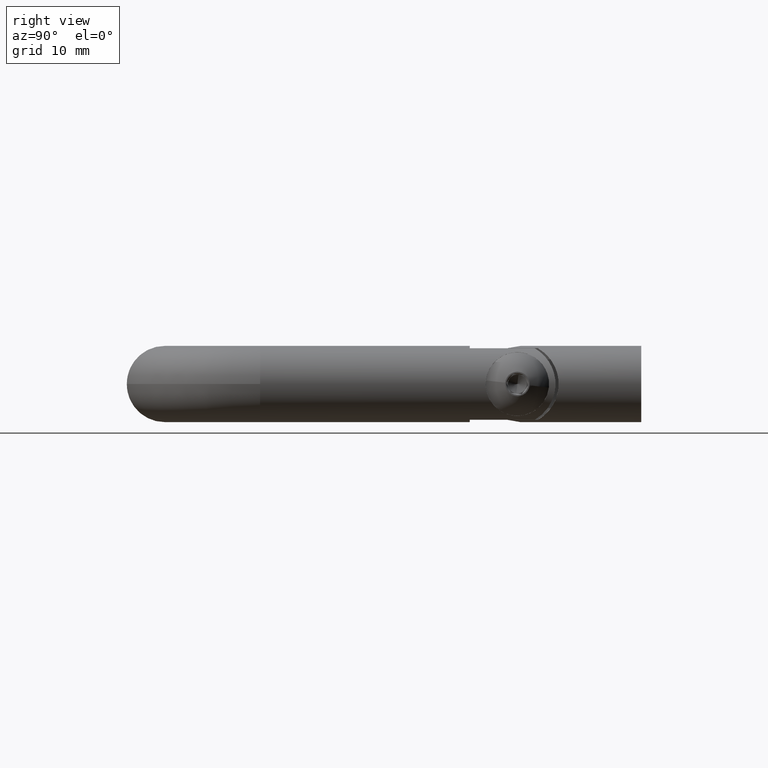
[diagram: clean part render]
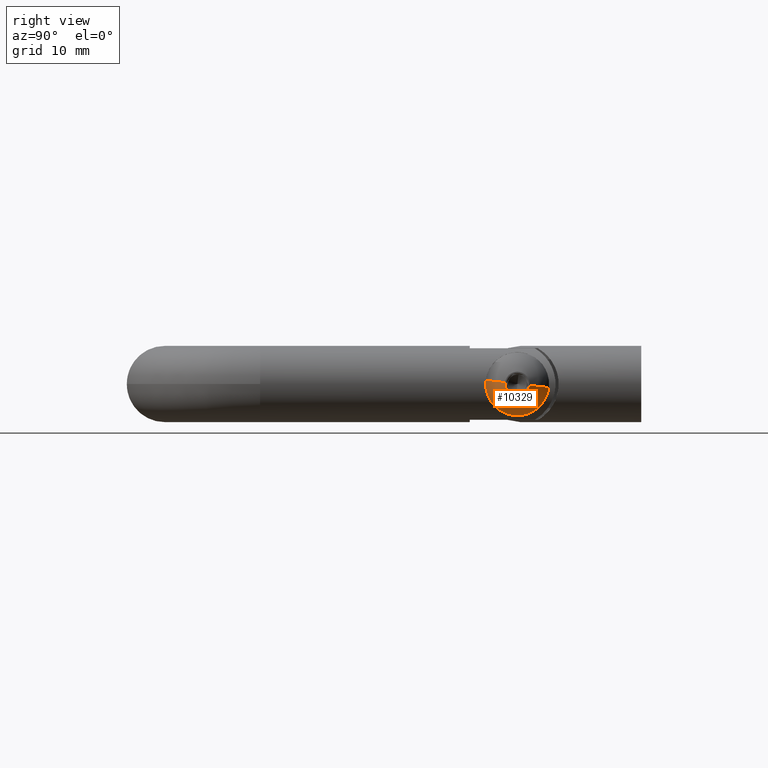
[diagram: same view with one face highlighted and labeled with its STEP entity id]
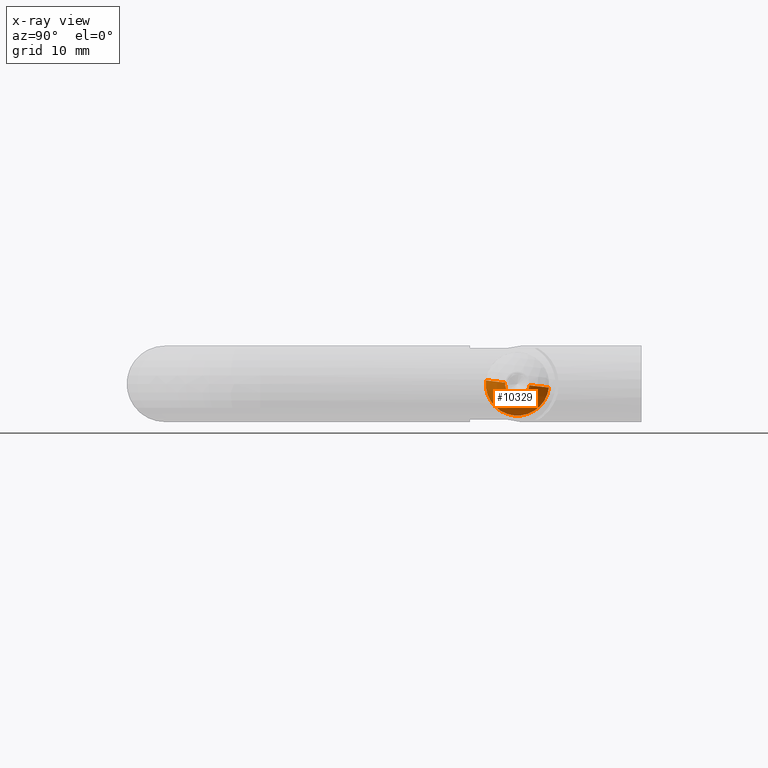
[diagram: x-ray of the same camera — body ghosted, the highlighted face saturated]
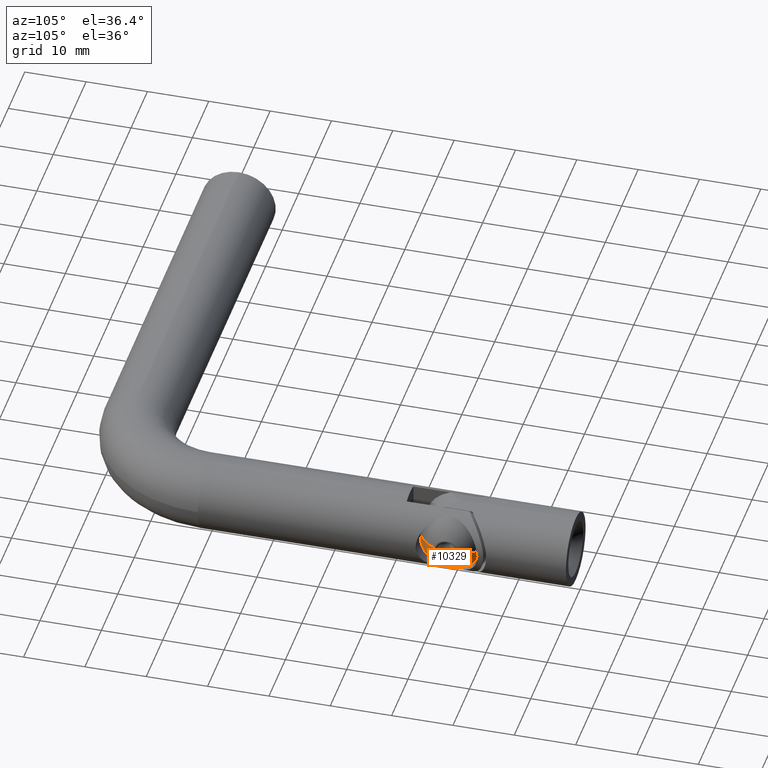
[diagram: same view with one face highlighted and labeled with its STEP entity id]
A machine part, right view. The second image highlights one B-rep face of the part: STEP entity #10329.
The next image is the same camera in x-ray: the body ghosted, the highlighted face saturated — about 0% of this face is hidden behind the body in this view.
A second angle (auxiliary view) of the same face is appended — the face is thin or edge-on in the first view.
In plain terms, the highlighted spherical surface has radius 5.7263 mm.
Its self-contained STEP definition (entity closure, byte-faithful):
#66 = VERTEX_POINT ( 'NONE', #1034 ) ;
#183 = DIRECTION ( 'NONE',  ( 5.551115123125753736E-17, -5.669937756275992574E-31, -1.000000000000000000 ) ) ;
#251 = CARTESIAN_POINT ( 'NONE',  ( 0.000000000000000000, 5.390155783928374689, 0.000000000000000000 ) ) ;
#521 = CARTESIAN_POINT ( 'NONE',  ( 0.000000000000000000, 0.000000000000000000, 0.000000000000000000 ) ) ;
#555 = VERTEX_POINT ( 'NONE', #4785 ) ;
#635 = EDGE_CURVE ( 'NONE', #66, #12168, #15526, .T. ) ;
#1034 = CARTESIAN_POINT ( 'NONE',  ( -1.933000807568874491, 0.000000000000000000, 2.320944342160657094E-16 ) ) ;
#1130 = ORIENTED_EDGE ( 'NONE', *, *, #4786, .F. ) ;
#1676 = DIRECTION ( 'NONE',  ( 1.294224922628222493E-31, -1.000000000000000000, -6.409494854920720919E-31 ) ) ;
#2050 = AXIS2_PLACEMENT_3D ( 'NONE', #12110, #1676, #15347 ) ;
#2093 = FACE_OUTER_BOUND ( 'NONE', #2482, .T. ) ;
#2175 = EDGE_CURVE ( 'NONE', #9687, #3368, #10539, .T. ) ;
#2283 = CARTESIAN_POINT ( 'NONE',  ( 0.000000000000000000, 5.390155783928374689, 0.000000000000000000 ) ) ;
#2351 = AXIS2_PLACEMENT_3D ( 'NONE', #521, #6147, #183 ) ;
#2482 = EDGE_LOOP ( 'NONE', ( #1130, #7537, #3135, #4919, #14045 ) ) ;
#2576 = DIRECTION ( 'NONE',  ( 5.551115123125754969E-17, 0.000000000000000000, -1.000000000000000000 ) ) ;
#2882 = CIRCLE ( 'NONE', #10750, 5.726279027176234493 ) ;
#3135 = ORIENTED_EDGE ( 'NONE', *, *, #2175, .T. ) ;
#3368 = VERTEX_POINT ( 'NONE', #14708 ) ;
#4124 = DIRECTION ( 'NONE',  ( 5.551115123125754352E-17, 6.409494854920720919E-31, -1.000000000000000000 ) ) ;
#4401 = AXIS2_PLACEMENT_3D ( 'NONE', #2283, #7077, #5847 ) ;
#4785 = CARTESIAN_POINT ( 'NONE',  ( -5.000000000000013323, 2.599049999999992977, 3.347676434173878876E-16 ) ) ;
#4786 = EDGE_CURVE ( 'NONE', #555, #66, #7619, .T. ) ;
#4919 = ORIENTED_EDGE ( 'NONE', *, *, #12273, .T. ) ;
#5107 = EDGE_CURVE ( 'NONE', #555, #9687, #6862, .T. ) ;
#5847 = DIRECTION ( 'NONE',  ( 1.000000000000000000, 0.000000000000000000, -6.695352868347776487E-17 ) ) ;
#6077 = CARTESIAN_POINT ( 'NONE',  ( 0.000000000000000000, 2.599049999999992977, 0.000000000000000000 ) ) ;
#6147 = DIRECTION ( 'NONE',  ( 1.294224922628222493E-31, -1.000000000000000000, -6.409494854920720919E-31 ) ) ;
#6862 = CIRCLE ( 'NONE', #2050, 5.000000000000023981 ) ;
#7077 = DIRECTION ( 'NONE',  ( 6.695352868347776487E-17, -6.409494854920720919E-31, 1.000000000000000000 ) ) ;
#7537 = ORIENTED_EDGE ( 'NONE', *, *, #5107, .T. ) ;
#7619 = CIRCLE ( 'NONE', #4401, 5.726279027176234493 ) ;
#8009 = CARTESIAN_POINT ( 'NONE',  ( 1.933000807568874491, 0.000000000000000000, 1.924294281576904032E-16 ) ) ;
#9687 = VERTEX_POINT ( 'NONE', #11419 ) ;
#9723 = DIRECTION ( 'NONE',  ( 1.294224922628222493E-31, -1.000000000000000000, -6.409494854920720919E-31 ) ) ;
#9794 = AXIS2_PLACEMENT_3D ( 'NONE', #251, #13410, #13363 ) ;
#9956 = AXIS2_PLACEMENT_3D ( 'NONE', #6077, #9723, #2576 ) ;
#10329 = ADVANCED_FACE ( 'NONE', ( #2093 ), #11277, .T. ) ;
#10539 = CIRCLE ( 'NONE', #9956, 5.000000000000023981 ) ;
#10750 = AXIS2_PLACEMENT_3D ( 'NONE', #14739, #4124, #13582 ) ;
#11277 = SPHERICAL_SURFACE ( 'NONE', #9794, 5.726279027176234493 ) ;
#11419 = CARTESIAN_POINT ( 'NONE',  ( 2.775557561562873109E-16, 2.599049999999992977, -4.999999999999999112 ) ) ;
#12110 = CARTESIAN_POINT ( 'NONE',  ( 0.000000000000000000, 2.599049999999992977, 0.000000000000000000 ) ) ;
#12168 = VERTEX_POINT ( 'NONE', #8009 ) ;
#12273 = EDGE_CURVE ( 'NONE', #3368, #12168, #2882, .T. ) ;
#13363 = DIRECTION ( 'NONE',  ( 1.000000000000000000, 0.000000000000000000, 5.551115123125754352E-17 ) ) ;
#13410 = DIRECTION ( 'NONE',  ( -5.551115123125754352E-17, -6.409494854920720919E-31, 1.000000000000000000 ) ) ;
#13582 = DIRECTION ( 'NONE',  ( -1.000000000000000000, 0.000000000000000000, -5.551115123125754352E-17 ) ) ;
#14045 = ORIENTED_EDGE ( 'NONE', *, *, #635, .F. ) ;
#14708 = CARTESIAN_POINT ( 'NONE',  ( 5.000000000000013323, 2.599049999999992977, 2.775557561562866699E-16 ) ) ;
#14739 = CARTESIAN_POINT ( 'NONE',  ( 0.000000000000000000, 5.390155783928374689, 0.000000000000000000 ) ) ;
#15347 = DIRECTION ( 'NONE',  ( 5.551115123125754969E-17, 0.000000000000000000, -1.000000000000000000 ) ) ;
#15526 = CIRCLE ( 'NONE', #2351, 1.933000807568884483 ) ;